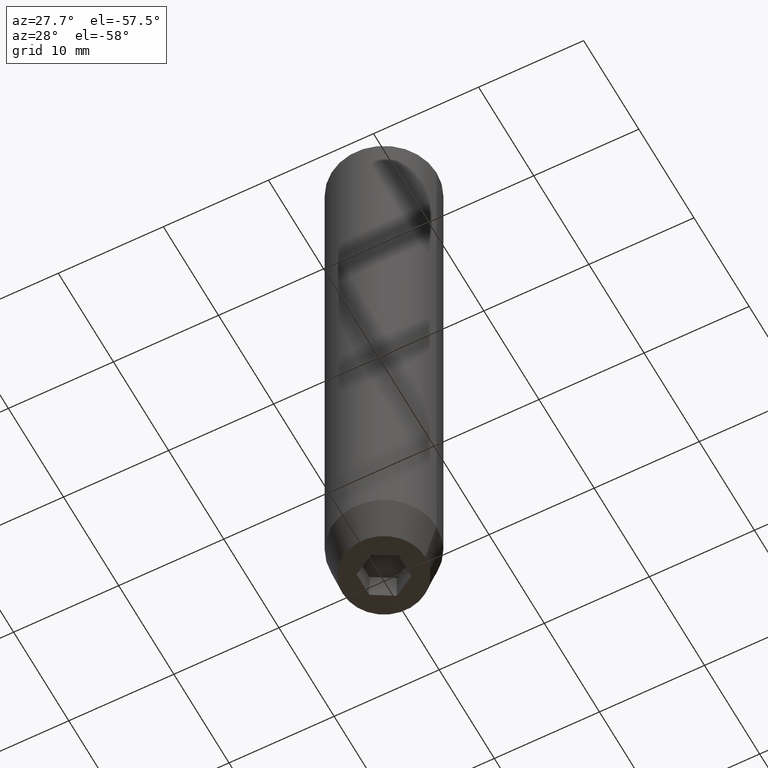
[diagram: clean part render]
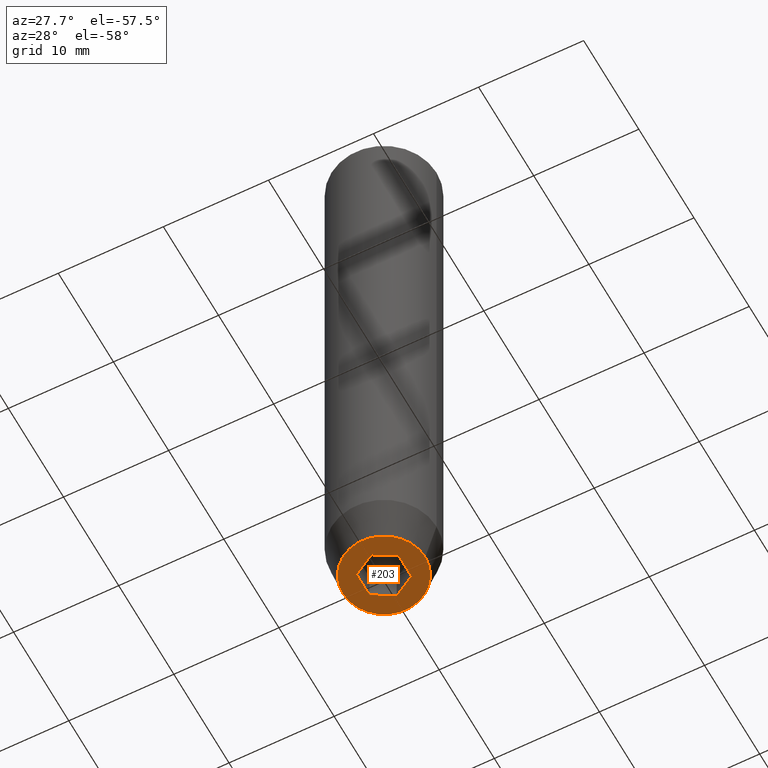
[diagram: same view with one face highlighted and labeled with its STEP entity id]
A machine part, auxiliary view. The second image highlights one B-rep face of the part: STEP entity #203.
In plain terms, the highlighted planar face has unit normal (0, 0, -1).
Its self-contained STEP definition (entity closure, byte-faithful):
#18 = VERTEX_POINT ( 'NONE', #191 ) ;
#19 = CARTESIAN_POINT ( 'NONE',  ( 0.9999999999999997780, -1.732050807568878747, -60.00000000000000000 ) ) ;
#22 = DIRECTION ( 'NONE',  ( -0.000000000000000000, -0.000000000000000000, 1.000000000000000000 ) ) ;
#44 = VERTEX_POINT ( 'NONE', #151 ) ;
#51 = CARTESIAN_POINT ( 'NONE',  ( 2.168404344971008868E-16, -2.309401076758503812, -60.00000000000000000 ) ) ;
#63 = CARTESIAN_POINT ( 'NONE',  ( -1.000000000000000222, -1.732050807568877637, -60.00000000000000000 ) ) ;
#70 = DIRECTION ( 'NONE',  ( -0.000000000000000000, -0.000000000000000000, 1.000000000000000000 ) ) ;
#98 = ORIENTED_EDGE ( 'NONE', *, *, #207, .F. ) ;
#101 = ORIENTED_EDGE ( 'NONE', *, *, #194, .F. ) ;
#115 = PLANE ( 'NONE',  #574 ) ;
#123 = DIRECTION ( 'NONE',  ( 0.000000000000000000, 0.000000000000000000, -1.000000000000000000 ) ) ;
#126 = DIRECTION ( 'NONE',  ( 0.8660254037844385966, 0.5000000000000001110, 0.000000000000000000 ) ) ;
#135 = VECTOR ( 'NONE', #456, 1000.000000000000000 ) ;
#140 = VERTEX_POINT ( 'NONE', #166 ) ;
#151 = CARTESIAN_POINT ( 'NONE',  ( -1.999999999999997780, 1.154700538379253238, -60.00000000000000000 ) ) ;
#161 = CARTESIAN_POINT ( 'NONE',  ( -1.999999999999998668, -1.154700538379252572, -60.00000000000000000 ) ) ;
#166 = CARTESIAN_POINT ( 'NONE',  ( -3.928203230275505220, 5.466947754046979141E-16, -60.00000000000000000 ) ) ;
#172 = VERTEX_POINT ( 'NONE', #281 ) ;
#174 = CARTESIAN_POINT ( 'NONE',  ( 0.000000000000000000, 3.928203230275505220, -60.00000000000000000 ) ) ;
#177 = CARTESIAN_POINT ( 'NONE',  ( -1.000000000000000444, 1.732050807568877637, -60.00000000000000000 ) ) ;
#180 = EDGE_CURVE ( 'NONE', #245, #18, #524, .T. ) ;
#185 = CIRCLE ( 'NONE', #262, 3.928203230275505220 ) ;
#191 = CARTESIAN_POINT ( 'NONE',  ( 2.000000000000000888, 1.154700538379251462, -60.00000000000000000 ) ) ;
#194 = EDGE_CURVE ( 'NONE', #374, #433, #472, .T. ) ;
#197 = CARTESIAN_POINT ( 'NONE',  ( 0.000000000000000000, 0.000000000000000000, -60.00000000000000000 ) ) ;
#203 = ADVANCED_FACE ( 'NONE', ( #335, #521 ), #115, .T. ) ;
#207 = EDGE_CURVE ( 'NONE', #44, #245, #300, .T. ) ;
#218 = DIRECTION ( 'NONE',  ( 0.000000000000000000, -1.000000000000000000, 0.000000000000000000 ) ) ;
#223 = AXIS2_PLACEMENT_3D ( 'NONE', #379, #70, #462 ) ;
#245 = VERTEX_POINT ( 'NONE', #259 ) ;
#250 = DIRECTION ( 'NONE',  ( -0.8660254037844387076, 0.5000000000000001110, 0.000000000000000000 ) ) ;
#257 = ORIENTED_EDGE ( 'NONE', *, *, #180, .F. ) ;
#259 = CARTESIAN_POINT ( 'NONE',  ( 0.000000000000000000, 2.309401076758503812, -60.00000000000000000 ) ) ;
#262 = AXIS2_PLACEMENT_3D ( 'NONE', #197, #22, #562 ) ;
#275 = EDGE_CURVE ( 'NONE', #18, #172, #436, .T. ) ;
#281 = CARTESIAN_POINT ( 'NONE',  ( 2.000000000000000888, -1.154700538379252572, -60.00000000000000000 ) ) ;
#289 = DIRECTION ( 'NONE',  ( -0.8660254037844388186, -0.4999999999999996114, 0.000000000000000000 ) ) ;
#296 = EDGE_CURVE ( 'NONE', #433, #44, #414, .T. ) ;
#300 = LINE ( 'NONE', #177, #534 ) ;
#333 = VERTEX_POINT ( 'NONE', #538 ) ;
#335 = FACE_BOUND ( 'NONE', #514, .T. ) ;
#345 = VECTOR ( 'NONE', #218, 1000.000000000000000 ) ;
#347 = DIRECTION ( 'NONE',  ( -1.000000000000000000, 0.000000000000000000, -0.000000000000000000 ) ) ;
#374 = VERTEX_POINT ( 'NONE', #51 ) ;
#379 = CARTESIAN_POINT ( 'NONE',  ( 0.000000000000000000, 0.000000000000000000, -60.00000000000000000 ) ) ;
#381 = ORIENTED_EDGE ( 'NONE', *, *, #296, .F. ) ;
#383 = ORIENTED_EDGE ( 'NONE', *, *, #483, .F. ) ;
#400 = CARTESIAN_POINT ( 'NONE',  ( -1.999999999999998224, 1.126735949052866956E-15, -60.00000000000000000 ) ) ;
#410 = ORIENTED_EDGE ( 'NONE', *, *, #499, .F. ) ;
#414 = LINE ( 'NONE', #400, #135 ) ;
#423 = LINE ( 'NONE', #19, #495 ) ;
#433 = VERTEX_POINT ( 'NONE', #161 ) ;
#436 = LINE ( 'NONE', #438, #345 ) ;
#438 = CARTESIAN_POINT ( 'NONE',  ( 2.000000000000000888, 0.000000000000000000, -60.00000000000000000 ) ) ;
#444 = VECTOR ( 'NONE', #478, 1000.000000000000000 ) ;
#456 = DIRECTION ( 'NONE',  ( 5.633679745264339711E-16, 1.000000000000000000, 0.000000000000000000 ) ) ;
#462 = DIRECTION ( 'NONE',  ( 1.000000000000000000, 0.000000000000000000, 0.000000000000000000 ) ) ;
#467 = VECTOR ( 'NONE', #250, 999.9999999999998863 ) ;
#472 = LINE ( 'NONE', #63, #467 ) ;
#477 = CIRCLE ( 'NONE', #223, 3.928203230275505220 ) ;
#478 = DIRECTION ( 'NONE',  ( 0.8660254037844385966, -0.5000000000000001110, 0.000000000000000000 ) ) ;
#483 = EDGE_CURVE ( 'NONE', #333, #140, #185, .T. ) ;
#495 = VECTOR ( 'NONE', #289, 1000.000000000000114 ) ;
#497 = ORIENTED_EDGE ( 'NONE', *, *, #532, .F. ) ;
#499 = EDGE_CURVE ( 'NONE', #140, #333, #477, .T. ) ;
#514 = EDGE_LOOP ( 'NONE', ( #98, #381, #101, #497, #530, #257 ) ) ;
#517 = CARTESIAN_POINT ( 'NONE',  ( 1.000000000000000444, 1.732050807568877637, -60.00000000000000000 ) ) ;
#521 = FACE_OUTER_BOUND ( 'NONE', #551, .T. ) ;
#524 = LINE ( 'NONE', #517, #444 ) ;
#530 = ORIENTED_EDGE ( 'NONE', *, *, #275, .F. ) ;
#532 = EDGE_CURVE ( 'NONE', #172, #374, #423, .T. ) ;
#534 = VECTOR ( 'NONE', #126, 1000.000000000000000 ) ;
#538 = CARTESIAN_POINT ( 'NONE',  ( 3.928203230275505220, 0.000000000000000000, -60.00000000000000000 ) ) ;
#551 = EDGE_LOOP ( 'NONE', ( #383, #410 ) ) ;
#562 = DIRECTION ( 'NONE',  ( 1.000000000000000000, 0.000000000000000000, 0.000000000000000000 ) ) ;
#574 = AXIS2_PLACEMENT_3D ( 'NONE', #174, #123, #347 ) ;